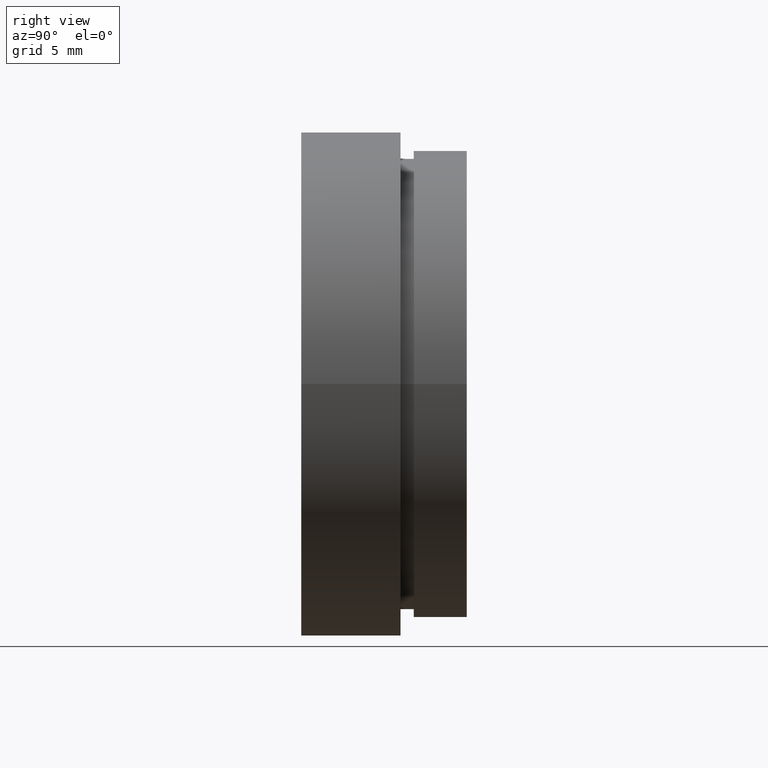
[diagram: clean part render]
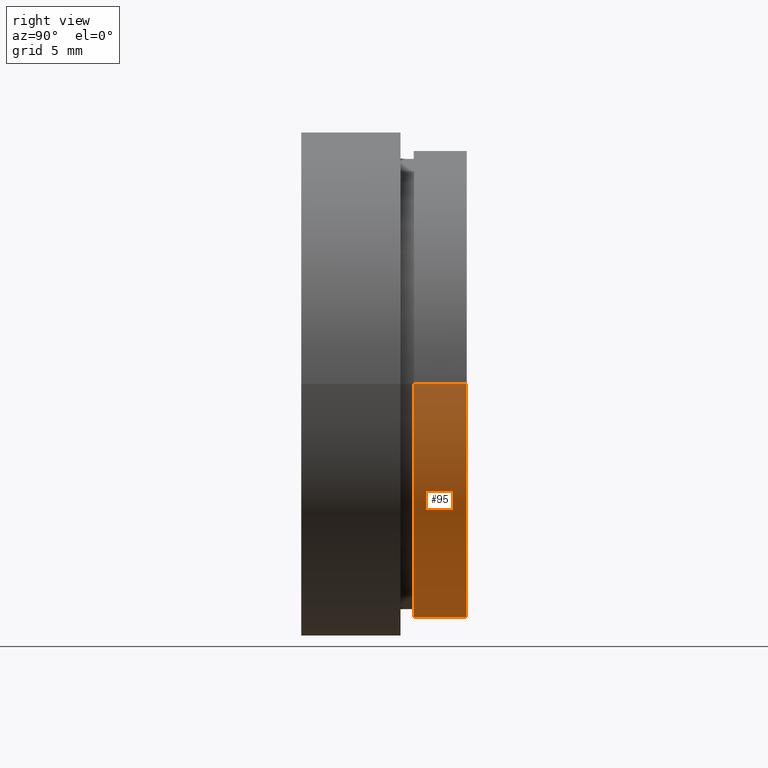
[diagram: same view with one face highlighted and labeled with its STEP entity id]
A machine part, right view. The second image highlights one B-rep face of the part: STEP entity #95.
In plain terms, the highlighted cylindrical surface (partial cylindrical patch) has radius 17.6 mm, axis along (-0, 1, -0).
Its self-contained STEP definition (entity closure, byte-faithful):
#6 = CYLINDRICAL_SURFACE ( 'NONE', #156, 17.60000000000000100 ) ;
#52 = EDGE_CURVE ( 'NONE', #88, #330, #297, .T. ) ;
#76 = DIRECTION ( 'NONE',  ( -1.224646799147351000E-016, 1.000000000000000000, -0.0000000000000000000 ) ) ;
#79 = EDGE_CURVE ( 'NONE', #88, #267, #138, .T. ) ;
#82 = VECTOR ( 'NONE', #283, 1000.000000000000000 ) ;
#88 = VERTEX_POINT ( 'NONE', #383 ) ;
#95 = ADVANCED_FACE ( 'NONE', ( #288 ), #6, .T. ) ;
#105 = DIRECTION ( 'NONE',  ( -1.224646799147351000E-016, 1.000000000000000000, -0.0000000000000000000 ) ) ;
#128 = DIRECTION ( 'NONE',  ( -1.224646799147351000E-016, 1.000000000000000000, -0.0000000000000000000 ) ) ;
#134 = EDGE_LOOP ( 'NONE', ( #331, #409, #426, #340 ) ) ;
#136 = LINE ( 'NONE', #261, #372 ) ;
#138 = LINE ( 'NONE', #181, #82 ) ;
#147 = DIRECTION ( 'NONE',  ( -1.000000000000000000, -9.856383386231857600E-017, 0.0000000000000000000 ) ) ;
#151 = CARTESIAN_POINT ( 'NONE',  ( -17.60000000000000100, 12.49999999999999500, 0.0000000000000000000 ) ) ;
#156 = AXIS2_PLACEMENT_3D ( 'NONE', #319, #105, #351 ) ;
#163 = CARTESIAN_POINT ( 'NONE',  ( 17.60000000000000100, 12.49999999999999800, 2.155378366499341600E-015 ) ) ;
#181 = CARTESIAN_POINT ( 'NONE',  ( 17.60000000000000100, 16.88601823708208000, 2.155378366499341600E-015 ) ) ;
#226 = CARTESIAN_POINT ( 'NONE',  ( 5.371323195044474300E-016, 12.49999999999999600, 0.0000000000000000000 ) ) ;
#237 = VERTEX_POINT ( 'NONE', #151 ) ;
#247 = CARTESIAN_POINT ( 'NONE',  ( 1.026991039163387700E-015, 8.499999999999998200, 0.0000000000000000000 ) ) ;
#255 = EDGE_CURVE ( 'NONE', #330, #237, #136, .T. ) ;
#260 = DIRECTION ( 'NONE',  ( -1.000000000000000000, -9.856383386231857600E-017, 0.0000000000000000000 ) ) ;
#261 = CARTESIAN_POINT ( 'NONE',  ( -17.60000000000000100, 16.88601823708207300, 0.0000000000000000000 ) ) ;
#267 = VERTEX_POINT ( 'NONE', #163 ) ;
#283 = DIRECTION ( 'NONE',  ( -1.224646799147351000E-016, 1.000000000000000000, -0.0000000000000000000 ) ) ;
#288 = FACE_OUTER_BOUND ( 'NONE', #134, .T. ) ;
#290 = EDGE_CURVE ( 'NONE', #267, #237, #306, .T. ) ;
#297 = CIRCLE ( 'NONE', #373, 17.60000000000000100 ) ;
#306 = CIRCLE ( 'NONE', #407, 17.60000000000000100 ) ;
#319 = CARTESIAN_POINT ( 'NONE',  ( 0.0000000000000000000, 16.88601823708207700, 0.0000000000000000000 ) ) ;
#330 = VERTEX_POINT ( 'NONE', #365 ) ;
#331 = ORIENTED_EDGE ( 'NONE', *, *, #79, .F. ) ;
#340 = ORIENTED_EDGE ( 'NONE', *, *, #290, .F. ) ;
#351 = DIRECTION ( 'NONE',  ( -1.000000000000000000, -1.971276677246371500E-016, 0.0000000000000000000 ) ) ;
#363 = DIRECTION ( 'NONE',  ( -1.224646799147351000E-016, 1.000000000000000000, -0.0000000000000000000 ) ) ;
#365 = CARTESIAN_POINT ( 'NONE',  ( -17.60000000000000100, 8.499999999999996400, 0.0000000000000000000 ) ) ;
#372 = VECTOR ( 'NONE', #128, 1000.000000000000000 ) ;
#373 = AXIS2_PLACEMENT_3D ( 'NONE', #247, #76, #147 ) ;
#383 = CARTESIAN_POINT ( 'NONE',  ( 17.60000000000000100, 8.500000000000000000, 2.155378366499341600E-015 ) ) ;
#407 = AXIS2_PLACEMENT_3D ( 'NONE', #226, #363, #260 ) ;
#409 = ORIENTED_EDGE ( 'NONE', *, *, #52, .T. ) ;
#426 = ORIENTED_EDGE ( 'NONE', *, *, #255, .T. ) ;